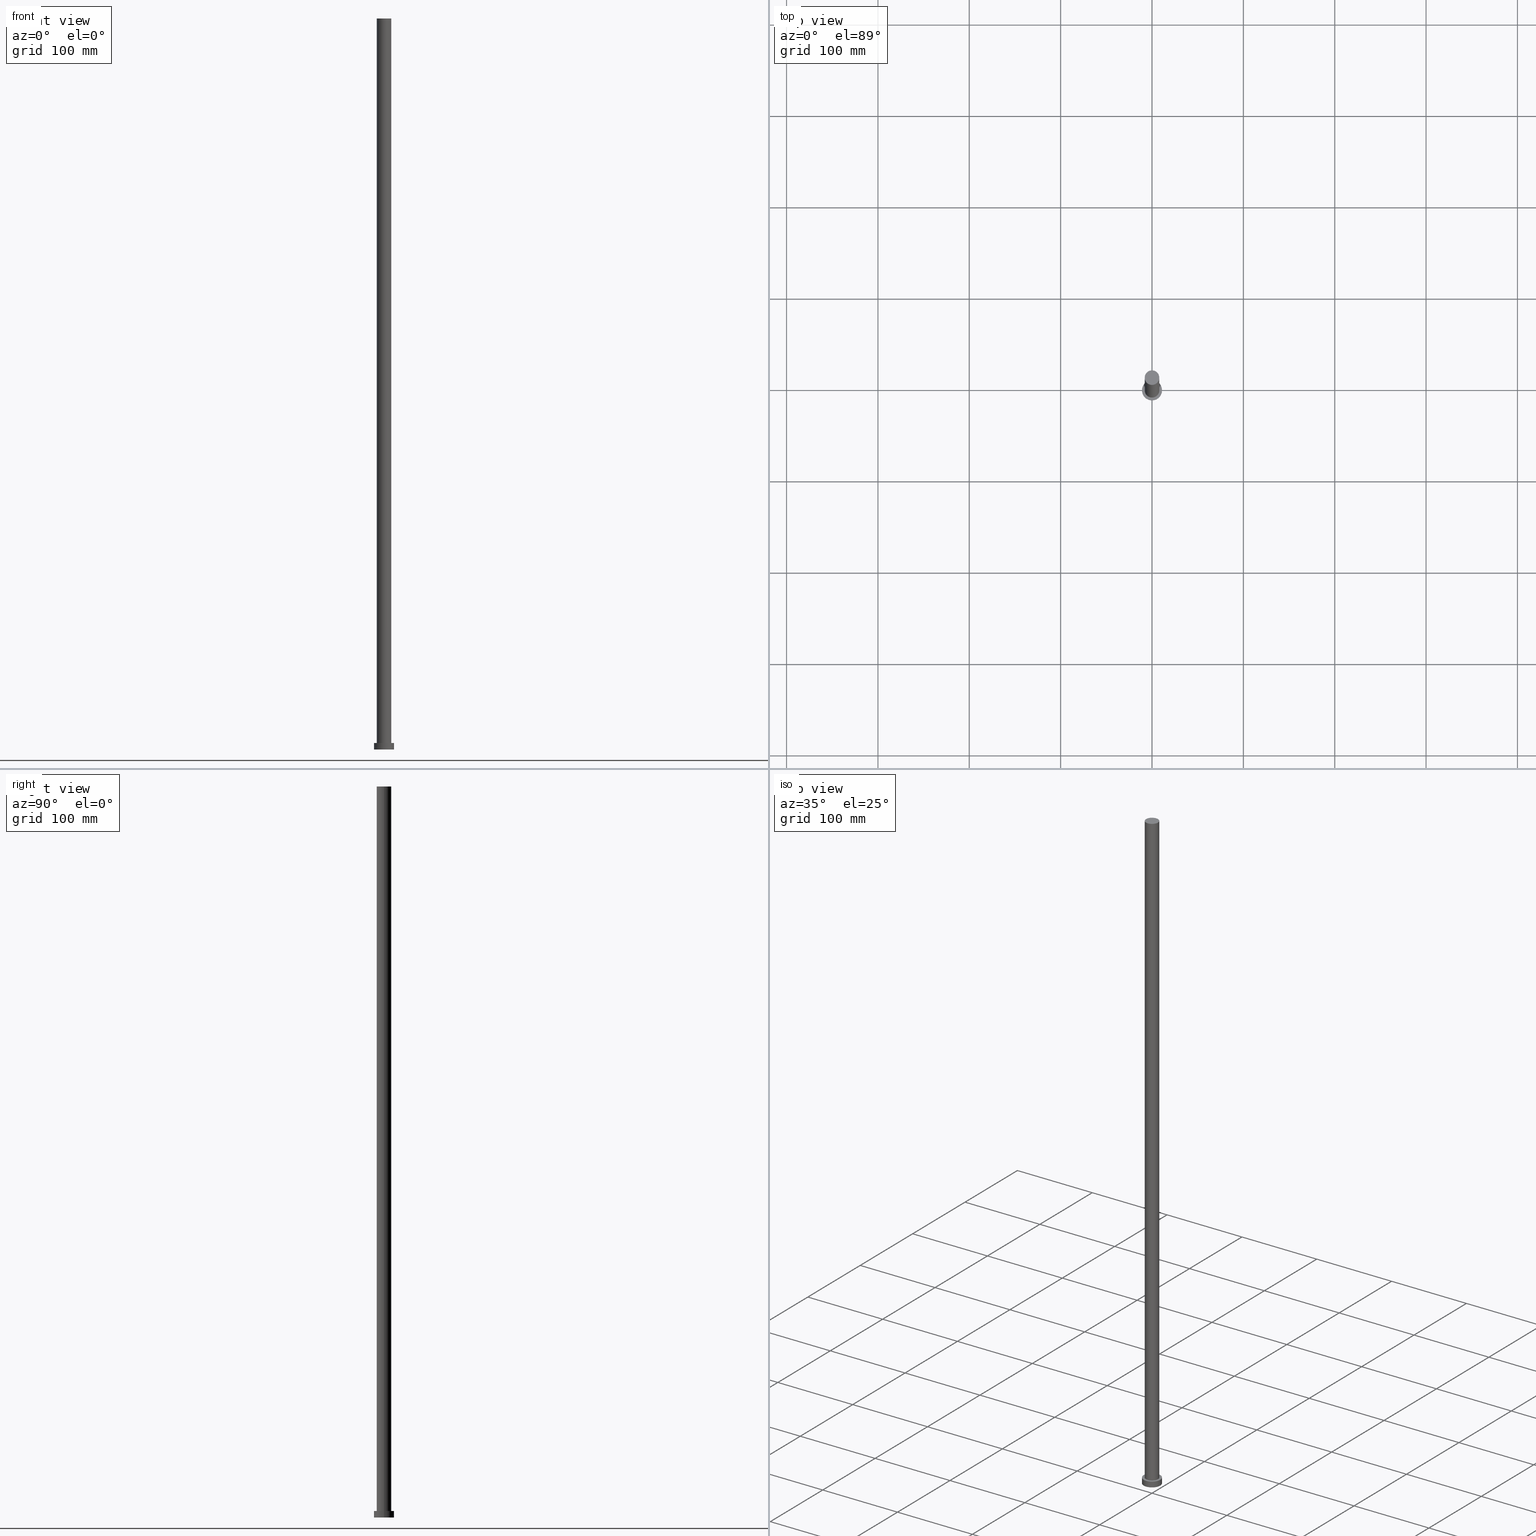
[diagram: canonical four-view strip — front | top / right | iso, engineering-drawing reading convention]
A machine part, canonical four-view strip (front | top / right | iso — engineering-drawing reading convention). The complete STEP part file that produces these views, byte-faithful:
ISO-10303-21;
HEADER;
FILE_DESCRIPTION (( 'STEP AP203' ),
    '1' );
FILE_NAME ('9c5d.STEP',
    '2023-02-13T09:20:09',
    ( '' ),
    ( '' ),
    'SwSTEP 2.0',
    'SolidWorks 2019',
    '' );
FILE_SCHEMA (( 'CONFIG_CONTROL_DESIGN' ));
ENDSEC;

DATA;
#1 = APPROVAL_ROLE ( '' ) ;
#2 = EDGE_LOOP ( 'NONE', ( #85, #157, #143, #61 ) ) ;
#3 = ORIENTED_EDGE ( 'NONE', *, *, #38, .T. ) ;
#4 = ORIENTED_EDGE ( 'NONE', *, *, #128, .T. ) ;
#5 = ADVANCED_FACE ( 'NONE', ( #106 ), #50, .T. ) ;
#6 = DIRECTION ( 'NONE',  ( -1.000000000000000000, 0.000000000000000000, 0.000000000000000000 ) ) ;
#7 = PLANE ( 'NONE',  #129 ) ;
#8 = CARTESIAN_POINT ( 'NONE',  ( 0.000000000000000000, 0.000000000000000000, 0.000000000000000000 ) ) ;
#9 = DIRECTION ( 'NONE',  ( -0.000000000000000000, -0.000000000000000000, -1.000000000000000000 ) ) ;
#10 = APPROVAL_DATE_TIME ( #72, #251 ) ;
#11 = DIRECTION ( 'NONE',  ( -1.000000000000000000, 0.000000000000000000, 0.000000000000000000 ) ) ;
#12 = PERSON_AND_ORGANIZATION_ROLE ( 'design_supplier' ) ;
#13 = VECTOR ( 'NONE', #87, 1000.000000000000000 ) ;
#14 = COORDINATED_UNIVERSAL_TIME_OFFSET ( 1, 0, .AHEAD. ) ;
#15 = DIRECTION ( 'NONE',  ( -0.000000000000000000, -0.000000000000000000, -1.000000000000000000 ) ) ;
#16 = CYLINDRICAL_SURFACE ( 'NONE', #48, 11.00000000000000000 ) ;
#17 = ADVANCED_FACE ( 'NONE', ( #242 ), #201, .F. ) ;
#18 = AXIS2_PLACEMENT_3D ( 'NONE', #59, #234, #19 ) ;
#19 = DIRECTION ( 'NONE',  ( 1.000000000000000000, 0.000000000000000000, 0.000000000000000000 ) ) ;
#20 = ORIENTED_EDGE ( 'NONE', *, *, #128, .F. ) ;
#21 = COORDINATED_UNIVERSAL_TIME_OFFSET ( 1, 0, .AHEAD. ) ;
#22 = CC_DESIGN_DATE_AND_TIME_ASSIGNMENT ( #97, #94, ( #192 ) ) ;
#23 = EDGE_LOOP ( 'NONE', ( #102, #3 ) ) ;
#24 = EDGE_LOOP ( 'NONE', ( #240, #238, #41, #223 ) ) ;
#25 = EDGE_CURVE ( 'NONE', #99, #160, #195, .T. ) ;
#26 = LINE ( 'NONE', #93, #13 ) ;
#27 = APPLICATION_CONTEXT ( 'configuration controlled 3d designs of mechanical parts and assemblies' ) ;
#28 = DIRECTION ( 'NONE',  ( 0.000000000000000000, 0.000000000000000000, 1.000000000000000000 ) ) ;
#29 = PERSON_AND_ORGANIZATION ( #213, #196 ) ;
#30 = DIRECTION ( 'NONE',  ( 0.000000000000000000, 0.000000000000000000, 1.000000000000000000 ) ) ;
#31 = CIRCLE ( 'NONE', #211, 11.00000000000000000 ) ;
#32 = CC_DESIGN_APPROVAL ( #103, ( #107 ) ) ;
#33 = DIRECTION ( 'NONE',  ( 1.000000000000000000, 0.000000000000000000, 0.000000000000000000 ) ) ;
#34 = CARTESIAN_POINT ( 'NONE',  ( -8.000000000000000000, 0.000000000000000000, 800.0000000000000000 ) ) ;
#35 = CALENDAR_DATE ( 2023, 13, 2 ) ;
#36 = AXIS2_PLACEMENT_3D ( 'NONE', #47, #66, #131 ) ;
#37 = CARTESIAN_POINT ( 'NONE',  ( 11.00000000000000000, 1.347111479062088405E-15, 7.000000000000000000 ) ) ;
#38 = EDGE_CURVE ( 'NONE', #46, #120, #105, .T. ) ;
#39 = APPLICATION_PROTOCOL_DEFINITION ( 'international standard', 'config_control_design', 1994, #27 ) ;
#40 = APPROVAL_PERSON_ORGANIZATION ( #173, #251, #217 ) ;
#41 = ORIENTED_EDGE ( 'NONE', *, *, #112, .T. ) ;
#42 = CC_DESIGN_PERSON_AND_ORGANIZATION_ASSIGNMENT ( #215, #190, ( #192 ) ) ;
#43 = AXIS2_PLACEMENT_3D ( 'NONE', #8, #202, #51 ) ;
#44 = ORIENTED_EDGE ( 'NONE', *, *, #124, .F. ) ;
#45 = APPROVAL_PERSON_ORGANIZATION ( #132, #98, #209 ) ;
#46 = VERTEX_POINT ( 'NONE', #185 ) ;
#47 = CARTESIAN_POINT ( 'NONE',  ( 0.000000000000000000, 0.000000000000000000, 7.000000000000000000 ) ) ;
#48 = AXIS2_PLACEMENT_3D ( 'NONE', #137, #254, #235 ) ;
#49 = CARTESIAN_POINT ( 'NONE',  ( 0.000000000000000000, 0.000000000000000000, 800.0000000000000000 ) ) ;
#50 = PLANE ( 'NONE',  #180 ) ;
#51 = DIRECTION ( 'NONE',  ( 1.000000000000000000, 0.000000000000000000, -0.000000000000000000 ) ) ;
#52 = VECTOR ( 'NONE', #15, 1000.000000000000000 ) ;
#53 = FACE_OUTER_BOUND ( 'NONE', #24, .T. ) ;
#54 = CARTESIAN_POINT ( 'NONE',  ( -8.000000000000000000, 0.000000000000000000, 7.000000000000000000 ) ) ;
#55 = CALENDAR_DATE ( 2023, 13, 2 ) ;
#56 = PRODUCT_DEFINITION_FORMATION_WITH_SPECIFIED_SOURCE ( 'LIBOVOLN�', '', #237, .NOT_KNOWN. ) ;
#57 = ADVANCED_FACE ( 'NONE', ( #183, #108 ), #7, .T. ) ;
#58 = UNCERTAINTY_MEASURE_WITH_UNIT (LENGTH_MEASURE( 1.000000000000000082E-05 ), #255, 'distance_accuracy_value', 'NONE');
#59 = CARTESIAN_POINT ( 'NONE',  ( 0.000000000000000000, 0.000000000000000000, 0.000000000000000000 ) ) ;
#60 = CALENDAR_DATE ( 2023, 13, 2 ) ;
#61 = ORIENTED_EDGE ( 'NONE', *, *, #124, .T. ) ;
#62 = SHAPE_DEFINITION_REPRESENTATION ( #225, #75 ) ;
#63 = ORIENTED_EDGE ( 'NONE', *, *, #241, .F. ) ;
#64 = ADVANCED_FACE ( 'NONE', ( #53 ), #169, .T. ) ;
#65 = CARTESIAN_POINT ( 'NONE',  ( 11.00000000000000000, 1.347111479062088405E-15, 7.000000000000000000 ) ) ;
#66 = DIRECTION ( 'NONE',  ( 0.000000000000000000, 0.000000000000000000, 1.000000000000000000 ) ) ;
#67 = DIRECTION ( 'NONE',  ( 1.000000000000000000, 0.000000000000000000, -0.000000000000000000 ) ) ;
#68 = EDGE_CURVE ( 'NONE', #101, #104, #121, .T. ) ;
#69 = FACE_OUTER_BOUND ( 'NONE', #142, .T. ) ;
#70 = DIRECTION ( 'NONE',  ( 0.000000000000000000, 0.000000000000000000, 1.000000000000000000 ) ) ;
#71 = AXIS2_PLACEMENT_3D ( 'NONE', #165, #205, #227 ) ;
#72 = DATE_AND_TIME ( #60, #83 ) ;
#73 = ADVANCED_FACE ( 'NONE', ( #69 ), #89, .T. ) ;
#74 = DIRECTION ( 'NONE',  ( -0.000000000000000000, -0.000000000000000000, -1.000000000000000000 ) ) ;
#75 = ADVANCED_BREP_SHAPE_REPRESENTATION ( '9c5d', ( #236, #191 ), #96 ) ;
#76 = CC_DESIGN_PERSON_AND_ORGANIZATION_ASSIGNMENT ( #189, #12, ( #56 ) ) ;
#77 = APPROVAL_DATE_TIME ( #178, #103 ) ;
#78 = AXIS2_PLACEMENT_3D ( 'NONE', #204, #28, #188 ) ;
#79 = CARTESIAN_POINT ( 'NONE',  ( 0.000000000000000000, 0.000000000000000000, 800.0000000000000000 ) ) ;
#80 =( NAMED_UNIT ( * ) PLANE_ANGLE_UNIT ( ) SI_UNIT ( $, .RADIAN. ) );
#81 = APPROVAL_STATUS ( 'not_yet_approved' ) ;
#82 = PRODUCT_RELATED_PRODUCT_CATEGORY ( 'detail', '', ( #237 ) ) ;
#83 = LOCAL_TIME ( 10, 20, 9.000000000000000000, #116 ) ;
#84 = EDGE_LOOP ( 'NONE', ( #44, #219 ) ) ;
#85 = ORIENTED_EDGE ( 'NONE', *, *, #151, .F. ) ;
#86 = ORIENTED_EDGE ( 'NONE', *, *, #25, .T. ) ;
#87 = DIRECTION ( 'NONE',  ( -0.000000000000000000, -0.000000000000000000, -1.000000000000000000 ) ) ;
#88 = CIRCLE ( 'NONE', #141, 8.000000000000000000 ) ;
#89 = CYLINDRICAL_SURFACE ( 'NONE', #177, 11.00000000000000000 ) ;
#90 = DIRECTION ( 'NONE',  ( 0.000000000000000000, 0.000000000000000000, 1.000000000000000000 ) ) ;
#91 = CARTESIAN_POINT ( 'NONE',  ( 0.000000000000000000, 0.000000000000000000, 800.0000000000000000 ) ) ;
#92 = PERSON_AND_ORGANIZATION ( #213, #196 ) ;
#93 = CARTESIAN_POINT ( 'NONE',  ( 8.000000000000000000, 9.797174393178825657E-16, 800.0000000000000000 ) ) ;
#94 = DATE_TIME_ROLE ( 'creation_date' ) ;
#95 = FACE_OUTER_BOUND ( 'NONE', #2, .T. ) ;
#96 =( GEOMETRIC_REPRESENTATION_CONTEXT ( 3 ) GLOBAL_UNCERTAINTY_ASSIGNED_CONTEXT ( ( #58 ) ) GLOBAL_UNIT_ASSIGNED_CONTEXT ( ( #255, #80, #115 ) ) REPRESENTATION_CONTEXT ( 'NONE', 'WORKASPACE' ) );
#97 = DATE_AND_TIME ( #114, #216 ) ;
#98 = APPROVAL ( #214, 'NEUR�EN�' ) ;
#99 = VERTEX_POINT ( 'NONE', #65 ) ;
#100 = ORIENTED_EDGE ( 'NONE', *, *, #68, .F. ) ;
#101 = VERTEX_POINT ( 'NONE', #231 ) ;
#102 = ORIENTED_EDGE ( 'NONE', *, *, #136, .T. ) ;
#103 = APPROVAL ( #170, 'NEUR�EN�' ) ;
#104 = VERTEX_POINT ( 'NONE', #147 ) ;
#105 = CIRCLE ( 'NONE', #71, 8.000000000000000000 ) ;
#106 = FACE_OUTER_BOUND ( 'NONE', #23, .T. ) ;
#107 = SECURITY_CLASSIFICATION ( '', '', #161 ) ;
#108 = FACE_OUTER_BOUND ( 'NONE', #179, .T. ) ;
#109 = CARTESIAN_POINT ( 'NONE',  ( 0.000000000000000000, 0.000000000000000000, 800.0000000000000000 ) ) ;
#110 = DATE_AND_TIME ( #35, #226 ) ;
#111 = CARTESIAN_POINT ( 'NONE',  ( 8.000000000000000000, 9.797174393178825657E-16, 7.000000000000000000 ) ) ;
#112 = EDGE_CURVE ( 'NONE', #199, #220, #244, .T. ) ;
#113 = COORDINATED_UNIVERSAL_TIME_OFFSET ( 1, 0, .AHEAD. ) ;
#114 = CALENDAR_DATE ( 2023, 13, 2 ) ;
#115 =( NAMED_UNIT ( * ) SI_UNIT ( $, .STERADIAN. ) SOLID_ANGLE_UNIT ( ) );
#116 = COORDINATED_UNIVERSAL_TIME_OFFSET ( 1, 0, .AHEAD. ) ;
#117 = ORIENTED_EDGE ( 'NONE', *, *, #174, .T. ) ;
#118 = EDGE_CURVE ( 'NONE', #120, #220, #208, .T. ) ;
#119 = CIRCLE ( 'NONE', #18, 11.00000000000000000 ) ;
#120 = VERTEX_POINT ( 'NONE', #34 ) ;
#121 = CIRCLE ( 'NONE', #253, 11.00000000000000000 ) ;
#122 = DIRECTION ( 'NONE',  ( 1.000000000000000000, 0.000000000000000000, 0.000000000000000000 ) ) ;
#123 = AXIS2_PLACEMENT_3D ( 'NONE', #91, #90, #167 ) ;
#124 = EDGE_CURVE ( 'NONE', #220, #199, #88, .T. ) ;
#125 = DIRECTION ( 'NONE',  ( 0.000000000000000000, 0.000000000000000000, 1.000000000000000000 ) ) ;
#126 = DATE_AND_TIME ( #229, #171 ) ;
#127 = CARTESIAN_POINT ( 'NONE',  ( 0.000000000000000000, 0.000000000000000000, 0.000000000000000000 ) ) ;
#128 = EDGE_CURVE ( 'NONE', #160, #99, #31, .T. ) ;
#129 = AXIS2_PLACEMENT_3D ( 'NONE', #166, #248, #246 ) ;
#130 = DIRECTION ( 'NONE',  ( -0.000000000000000000, -0.000000000000000000, -1.000000000000000000 ) ) ;
#131 = DIRECTION ( 'NONE',  ( 1.000000000000000000, 0.000000000000000000, 0.000000000000000000 ) ) ;
#132 = PERSON_AND_ORGANIZATION ( #213, #196 ) ;
#133 = CARTESIAN_POINT ( 'NONE',  ( -11.00000000000000000, 0.000000000000000000, 7.000000000000000000 ) ) ;
#134 = CLOSED_SHELL ( 'NONE', ( #64, #73, #212, #57, #17, #207, #5 ) ) ;
#135 = LOCAL_TIME ( 10, 20, 9.000000000000000000, #21 ) ;
#136 = EDGE_CURVE ( 'NONE', #120, #46, #221, .T. ) ;
#137 = CARTESIAN_POINT ( 'NONE',  ( 0.000000000000000000, 0.000000000000000000, 7.000000000000000000 ) ) ;
#138 = AXIS2_PLACEMENT_3D ( 'NONE', #49, #130, #11 ) ;
#139 = EDGE_LOOP ( 'NONE', ( #63, #100 ) ) ;
#140 = EDGE_LOOP ( 'NONE', ( #239, #20, #200, #159 ) ) ;
#141 = AXIS2_PLACEMENT_3D ( 'NONE', #247, #70, #230 ) ;
#142 = EDGE_LOOP ( 'NONE', ( #182, #117, #197, #222 ) ) ;
#143 = ORIENTED_EDGE ( 'NONE', *, *, #118, .T. ) ;
#144 = CARTESIAN_POINT ( 'NONE',  ( -8.000000000000000000, 0.000000000000000000, 800.0000000000000000 ) ) ;
#145 = CARTESIAN_POINT ( 'NONE',  ( -11.00000000000000000, 0.000000000000000000, 7.000000000000000000 ) ) ;
#146 = COORDINATED_UNIVERSAL_TIME_OFFSET ( 1, 0, .AHEAD. ) ;
#147 = CARTESIAN_POINT ( 'NONE',  ( -11.00000000000000000, 0.000000000000000000, 0.000000000000000000 ) ) ;
#148 = CARTESIAN_POINT ( 'NONE',  ( 0.000000000000000000, 0.000000000000000000, 7.000000000000000000 ) ) ;
#149 = DIRECTION ( 'NONE',  ( 0.000000000000000000, 0.000000000000000000, 1.000000000000000000 ) ) ;
#150 = CC_DESIGN_APPROVAL ( #98, ( #192 ) ) ;
#151 = EDGE_CURVE ( 'NONE', #46, #199, #26, .T. ) ;
#152 = APPLICATION_PROTOCOL_DEFINITION ( 'international standard', 'config_control_design', 1994, #158 ) ;
#153 = FACE_OUTER_BOUND ( 'NONE', #140, .T. ) ;
#154 = DIRECTION ( 'NONE',  ( 0.000000000000000000, 0.000000000000000000, 1.000000000000000000 ) ) ;
#155 = PERSON_AND_ORGANIZATION ( #213, #196 ) ;
#156 = AXIS2_PLACEMENT_3D ( 'NONE', #79, #194, #175 ) ;
#157 = ORIENTED_EDGE ( 'NONE', *, *, #136, .F. ) ;
#158 = APPLICATION_CONTEXT ( 'configuration controlled 3d designs of mechanical parts and assemblies' ) ;
#159 = ORIENTED_EDGE ( 'NONE', *, *, #241, .T. ) ;
#160 = VERTEX_POINT ( 'NONE', #145 ) ;
#161 = SECURITY_CLASSIFICATION_LEVEL ( 'unclassified' ) ;
#162 = LINE ( 'NONE', #37, #206 ) ;
#163 = PERSON_AND_ORGANIZATION ( #213, #196 ) ;
#164 = CC_DESIGN_PERSON_AND_ORGANIZATION_ASSIGNMENT ( #92, #168, ( #56 ) ) ;
#165 = CARTESIAN_POINT ( 'NONE',  ( 0.000000000000000000, 0.000000000000000000, 800.0000000000000000 ) ) ;
#166 = CARTESIAN_POINT ( 'NONE',  ( 0.000000000000000000, 0.000000000000000000, 7.000000000000000000 ) ) ;
#167 = DIRECTION ( 'NONE',  ( 1.000000000000000000, 0.000000000000000000, 0.000000000000000000 ) ) ;
#168 = PERSON_AND_ORGANIZATION_ROLE ( 'creator' ) ;
#169 = CYLINDRICAL_SURFACE ( 'NONE', #138, 8.000000000000000000 ) ;
#170 = APPROVAL_STATUS ( 'not_yet_approved' ) ;
#171 = LOCAL_TIME ( 10, 20, 9.000000000000000000, #146 ) ;
#172 = CC_DESIGN_DATE_AND_TIME_ASSIGNMENT ( #126, #203, ( #107 ) ) ;
#173 = PERSON_AND_ORGANIZATION ( #213, #196 ) ;
#174 = EDGE_CURVE ( 'NONE', #99, #101, #162, .T. ) ;
#175 = DIRECTION ( 'NONE',  ( -1.000000000000000000, 0.000000000000000000, 0.000000000000000000 ) ) ;
#176 = DESIGN_CONTEXT ( 'detailed design', #158, 'design' ) ;
#177 = AXIS2_PLACEMENT_3D ( 'NONE', #148, #187, #6 ) ;
#178 = DATE_AND_TIME ( #55, #135 ) ;
#179 = EDGE_LOOP ( 'NONE', ( #4, #86 ) ) ;
#180 = AXIS2_PLACEMENT_3D ( 'NONE', #109, #149, #67 ) ;
#181 = APPROVAL_PERSON_ORGANIZATION ( #29, #103, #1 ) ;
#182 = ORIENTED_EDGE ( 'NONE', *, *, #25, .F. ) ;
#183 = FACE_BOUND ( 'NONE', #84, .T. ) ;
#184 = CC_DESIGN_PERSON_AND_ORGANIZATION_ASSIGNMENT ( #155, #232, ( #237 ) ) ;
#185 = CARTESIAN_POINT ( 'NONE',  ( 8.000000000000000000, 9.797174393178825657E-16, 800.0000000000000000 ) ) ;
#186 = CC_DESIGN_SECURITY_CLASSIFICATION ( #107, ( #56 ) ) ;
#187 = DIRECTION ( 'NONE',  ( -0.000000000000000000, -0.000000000000000000, -1.000000000000000000 ) ) ;
#188 = DIRECTION ( 'NONE',  ( 1.000000000000000000, 0.000000000000000000, 0.000000000000000000 ) ) ;
#189 = PERSON_AND_ORGANIZATION ( #213, #196 ) ;
#190 = PERSON_AND_ORGANIZATION_ROLE ( 'creator' ) ;
#191 = AXIS2_PLACEMENT_3D ( 'NONE', #250, #154, #249 ) ;
#192 = PRODUCT_DEFINITION ( 'NEZN�M�', '', #56, #176 ) ;
#193 = APPROVAL_DATE_TIME ( #110, #98 ) ;
#194 = DIRECTION ( 'NONE',  ( -0.000000000000000000, -0.000000000000000000, -1.000000000000000000 ) ) ;
#195 = CIRCLE ( 'NONE', #78, 11.00000000000000000 ) ;
#196 = ORGANIZATION ( 'NEUR�EN�', 'NEUR�EN�', '' ) ;
#197 = ORIENTED_EDGE ( 'NONE', *, *, #68, .T. ) ;
#198 = VECTOR ( 'NONE', #9, 1000.000000000000000 ) ;
#199 = VERTEX_POINT ( 'NONE', #111 ) ;
#200 = ORIENTED_EDGE ( 'NONE', *, *, #218, .T. ) ;
#201 = PLANE ( 'NONE',  #43 ) ;
#202 = DIRECTION ( 'NONE',  ( 0.000000000000000000, 0.000000000000000000, 1.000000000000000000 ) ) ;
#203 = DATE_TIME_ROLE ( 'classification_date' ) ;
#204 = CARTESIAN_POINT ( 'NONE',  ( 0.000000000000000000, 0.000000000000000000, 7.000000000000000000 ) ) ;
#205 = DIRECTION ( 'NONE',  ( 0.000000000000000000, 0.000000000000000000, 1.000000000000000000 ) ) ;
#206 = VECTOR ( 'NONE', #74, 1000.000000000000000 ) ;
#207 = ADVANCED_FACE ( 'NONE', ( #95 ), #252, .T. ) ;
#208 = LINE ( 'NONE', #144, #198 ) ;
#209 = APPROVAL_ROLE ( '' ) ;
#210 = LINE ( 'NONE', #133, #52 ) ;
#211 = AXIS2_PLACEMENT_3D ( 'NONE', #224, #30, #122 ) ;
#212 = ADVANCED_FACE ( 'NONE', ( #153 ), #16, .T. ) ;
#213 = PERSON ( 'NEUR�EN�', 'NEUR�EN�', 'NEUR�EN�', ('NEUR�EN�'), ('NEUR�EN�'), ('NEUR�EN�') ) ;
#214 = APPROVAL_STATUS ( 'not_yet_approved' ) ;
#215 = PERSON_AND_ORGANIZATION ( #213, #196 ) ;
#216 = LOCAL_TIME ( 10, 20, 9.000000000000000000, #14 ) ;
#217 = APPROVAL_ROLE ( '' ) ;
#218 = EDGE_CURVE ( 'NONE', #160, #104, #210, .T. ) ;
#219 = ORIENTED_EDGE ( 'NONE', *, *, #112, .F. ) ;
#220 = VERTEX_POINT ( 'NONE', #54 ) ;
#221 = CIRCLE ( 'NONE', #123, 8.000000000000000000 ) ;
#222 = ORIENTED_EDGE ( 'NONE', *, *, #218, .F. ) ;
#223 = ORIENTED_EDGE ( 'NONE', *, *, #118, .F. ) ;
#224 = CARTESIAN_POINT ( 'NONE',  ( 0.000000000000000000, 0.000000000000000000, 7.000000000000000000 ) ) ;
#225 = PRODUCT_DEFINITION_SHAPE ( 'NONE', 'NONE',  #192 ) ;
#226 = LOCAL_TIME ( 10, 20, 9.000000000000000000, #113 ) ;
#227 = DIRECTION ( 'NONE',  ( 1.000000000000000000, 0.000000000000000000, 0.000000000000000000 ) ) ;
#228 = CC_DESIGN_PERSON_AND_ORGANIZATION_ASSIGNMENT ( #163, #243, ( #107 ) ) ;
#229 = CALENDAR_DATE ( 2023, 13, 2 ) ;
#230 = DIRECTION ( 'NONE',  ( 1.000000000000000000, 0.000000000000000000, 0.000000000000000000 ) ) ;
#231 = CARTESIAN_POINT ( 'NONE',  ( 11.00000000000000000, 1.347111479062088405E-15, 0.000000000000000000 ) ) ;
#232 = PERSON_AND_ORGANIZATION_ROLE ( 'design_owner' ) ;
#233 = MECHANICAL_CONTEXT ( 'NONE', #27, 'mechanical' ) ;
#234 = DIRECTION ( 'NONE',  ( 0.000000000000000000, 0.000000000000000000, 1.000000000000000000 ) ) ;
#235 = DIRECTION ( 'NONE',  ( -1.000000000000000000, 0.000000000000000000, 0.000000000000000000 ) ) ;
#236 = MANIFOLD_SOLID_BREP ( 'P�idat vysunut�m3', #134 ) ;
#237 = PRODUCT ( '9c5d', '9c5d', '', ( #233 ) ) ;
#238 = ORIENTED_EDGE ( 'NONE', *, *, #151, .T. ) ;
#239 = ORIENTED_EDGE ( 'NONE', *, *, #174, .F. ) ;
#240 = ORIENTED_EDGE ( 'NONE', *, *, #38, .F. ) ;
#241 = EDGE_CURVE ( 'NONE', #104, #101, #119, .T. ) ;
#242 = FACE_OUTER_BOUND ( 'NONE', #139, .T. ) ;
#243 = PERSON_AND_ORGANIZATION_ROLE ( 'classification_officer' ) ;
#244 = CIRCLE ( 'NONE', #36, 8.000000000000000000 ) ;
#245 = CC_DESIGN_APPROVAL ( #251, ( #56 ) ) ;
#246 = DIRECTION ( 'NONE',  ( 1.000000000000000000, 0.000000000000000000, -0.000000000000000000 ) ) ;
#247 = CARTESIAN_POINT ( 'NONE',  ( 0.000000000000000000, 0.000000000000000000, 7.000000000000000000 ) ) ;
#248 = DIRECTION ( 'NONE',  ( 0.000000000000000000, 0.000000000000000000, 1.000000000000000000 ) ) ;
#249 = DIRECTION ( 'NONE',  ( 1.000000000000000000, 0.000000000000000000, 0.000000000000000000 ) ) ;
#250 = CARTESIAN_POINT ( 'NONE',  ( 0.000000000000000000, 0.000000000000000000, 0.000000000000000000 ) ) ;
#251 = APPROVAL ( #81, 'NEUR�EN�' ) ;
#252 = CYLINDRICAL_SURFACE ( 'NONE', #156, 8.000000000000000000 ) ;
#253 = AXIS2_PLACEMENT_3D ( 'NONE', #127, #125, #33 ) ;
#254 = DIRECTION ( 'NONE',  ( -0.000000000000000000, -0.000000000000000000, -1.000000000000000000 ) ) ;
#255 =( LENGTH_UNIT ( ) NAMED_UNIT ( * ) SI_UNIT ( .MILLI., .METRE. ) );
ENDSEC;
END-ISO-10303-21;
